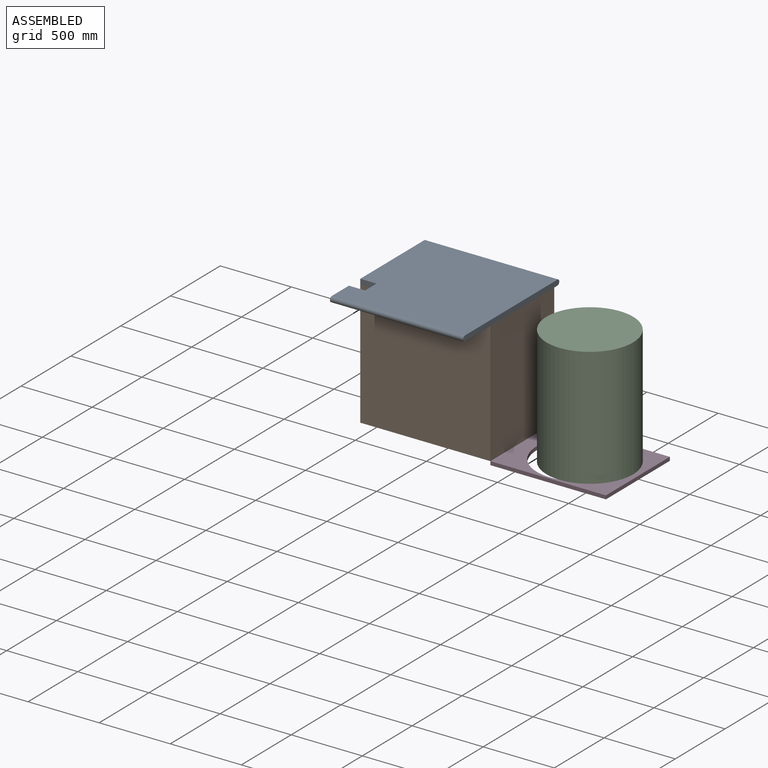
[diagram: assembled view]
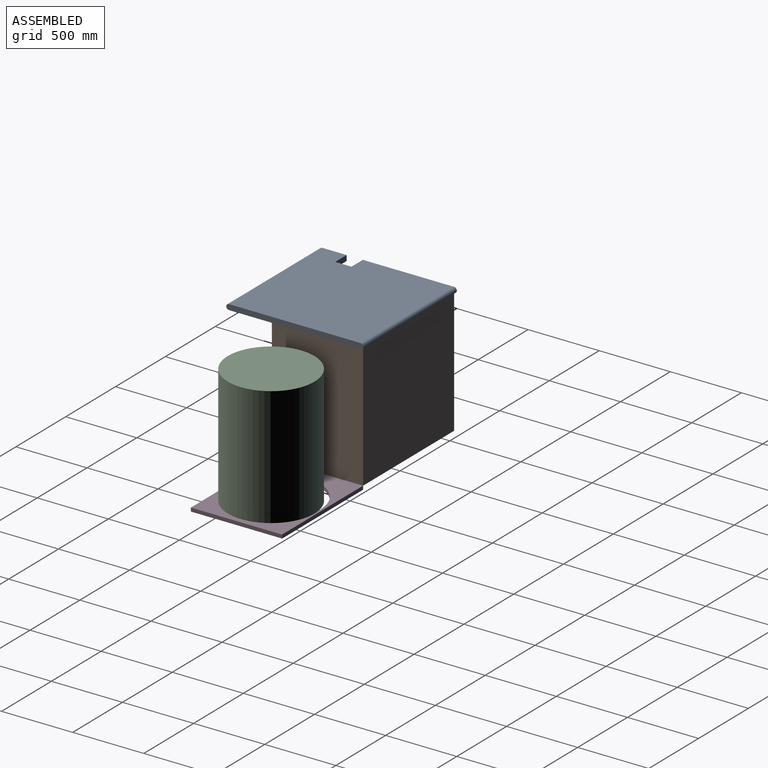
[diagram: assembled view, second angle]
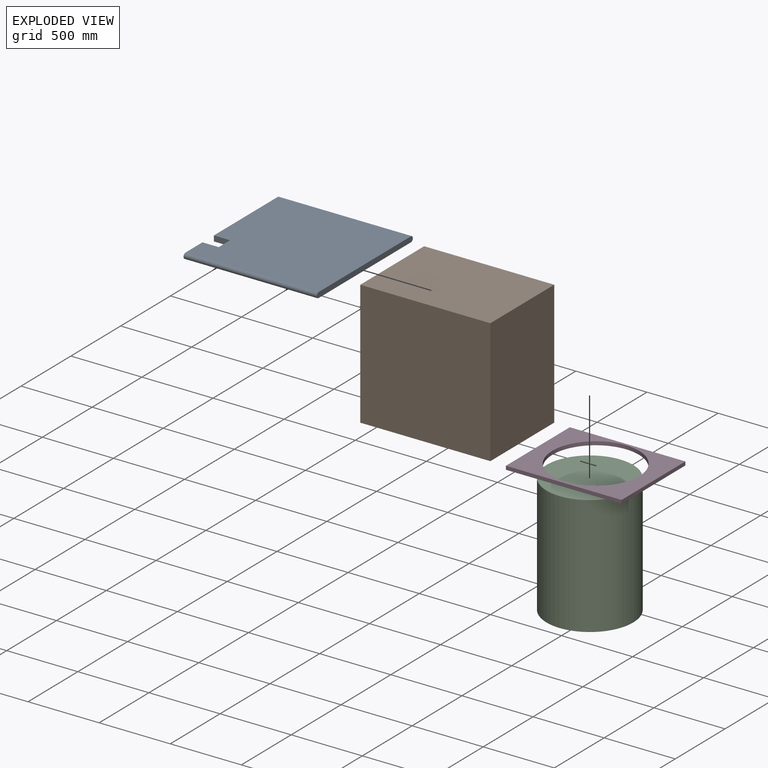
[diagram: exploded view]
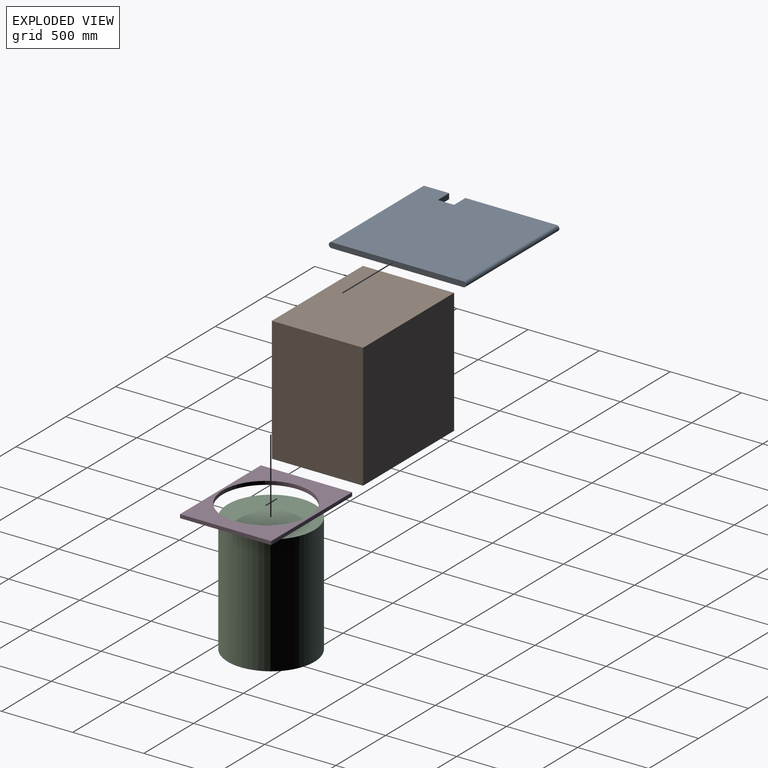
[diagram: exploded view, second angle]
ASSEMBLY  parts=4 mates=7
PART A: 10 faces, bbox 936.6x965.2x38.1 mm
  f0: plane 660.4x38.1mm, normal (-1,0,0), area 25005.5mm2, adj f2,f3,f5,f9
  f1: plane 190.5x38.1mm, normal (-1,0,0), area 7102.3mm2, adj f2,f3,f7,f8
  f2: plane 936.63x927.1mm, normal (0,0,-1), area 855280.5mm2, adj f0,f1,f4,f5,f6,f7,f8,f9
  f3: plane 936.63x927.1mm, normal (0,0,1), area 855280.5mm2, adj f0,f1,f4,f5,f6,f7,f8,f9
  f4: plane 965.2x38.1mm, normal (1,0,0), area 36462.6mm2, adj f2,f3,f8,f9
  f5: plane 114.3x38.1mm, normal (0,-1,0), area 4354.8mm2, adj f0,f2,f3,f6
  f6: plane 114.3x38.1mm, normal (-1,0,0), area 4354.8mm2, adj f2,f3,f5,f7
  f7: plane 114.3x38.1mm, normal (0,1,0), area 4354.8mm2, adj f1,f2,f3,f6
  f8: cylinder r=19.05mm len=936.63mm, axis (1,0,0), area 56054.5mm2, adj f1,f2,f3,f4
  f9: cylinder r=19.05mm len=936.63mm, axis (1,0,0), area 56054.5mm2, adj f0,f2,f3,f4
PART B: 6 faces, bbox 914.4x641.4x876.3 mm
  f0: plane 876.3x641.35mm, normal (1,0,0), area 562015mm2, adj f1,f3,f4,f5
  f1: plane 914.4x876.3mm, normal (0,1,0), area 801288.7mm2, adj f0,f2,f4,f5
  f2: plane 876.3x641.35mm, normal (-1,0,0), area 562015mm2, adj f1,f3,f4,f5
  f3: plane 914.4x876.3mm, normal (0,-1,0), area 801288.7mm2, adj f0,f2,f4,f5
  f4: plane 914.4x641.35mm, normal (0,0,1), area 586450.4mm2, adj f0,f1,f2,f3
  f5: plane 914.4x641.35mm, normal (0,0,-1), area 586450.4mm2, adj f0,f1,f2,f3
PART C: 3 faces, bbox 609.6x609.6x838.2 mm
  f0: cylinder r=304.8mm len=838.2mm, axis (0,0,-1), area 1605249.3mm2, adj f1,f2
  f1: plane 609.6x609.6mm, normal (0,0,1), area 291863.5mm2, adj f0
  f2: plane 609.6x609.6mm, normal (0,0,-1), area 291863.5mm2, adj f0
PART D: 7 faces, bbox 812.8x641.4x25.4 mm
  f0: plane 641.35x25.4mm, normal (1,0,0), area 16290.3mm2, adj f1,f4,f5,f6
  f1: plane 812.8x25.4mm, normal (0,-1,0), area 20645.1mm2, adj f0,f2,f5,f6
  f2: plane 641.35x25.4mm, normal (-1,0,0), area 16290.3mm2, adj f1,f4,f5,f6
  f3: cylinder r=304.8mm len=609.6mm, axis (0,0,1), area 48643.9mm2, adj f5,f6
  f4: plane 812.8x25.4mm, normal (0,1,0), area 20645.1mm2, adj f0,f2,f5,f6
  f5: plane 812.8x641.35mm, normal (0,0,-1), area 229425.8mm2, adj f0,f1,f2,f3,f4
  f6: plane 812.8x641.35mm, normal (0,0,1), area 229425.8mm2, adj f0,f1,f2,f3,f4
PLACE A t=(22.23,-304.8,876.3)mm
PLACE B at identity fixed
PLACE C rot(axis=(0,0,-1),90deg) t=(471.69,325.18,0)mm
PLACE D t=(406.4,320.68,0)mm
MATE planar D.f2 <-> B.f0  axis (-1,0,0) through (0,320.68,-12.7)mm
MATE planar D.f3 <-> B.f5  axis (0,0,1) through (406.4,320.68,0)mm
MATE planar A.f0 <-> B.f2  axis (-1,0,0) through (-914.4,328.17,895.35)mm
MATE planar A.f2 <-> B.f4  axis (0,0,-1) through (-439.81,181.39,876.3)mm
MATE planar B.f3 <-> D.f1  axis (0,-1,0) through (-457.2,0,438.15)mm
MATE planar B.f3 <-> A.f5  axis (0,-1,0) through (-914.4,0,876.3)mm
MATE planar C.f0 <-> D.f6  axis (0,0,-1) through (471.69,325.18,0)mm
